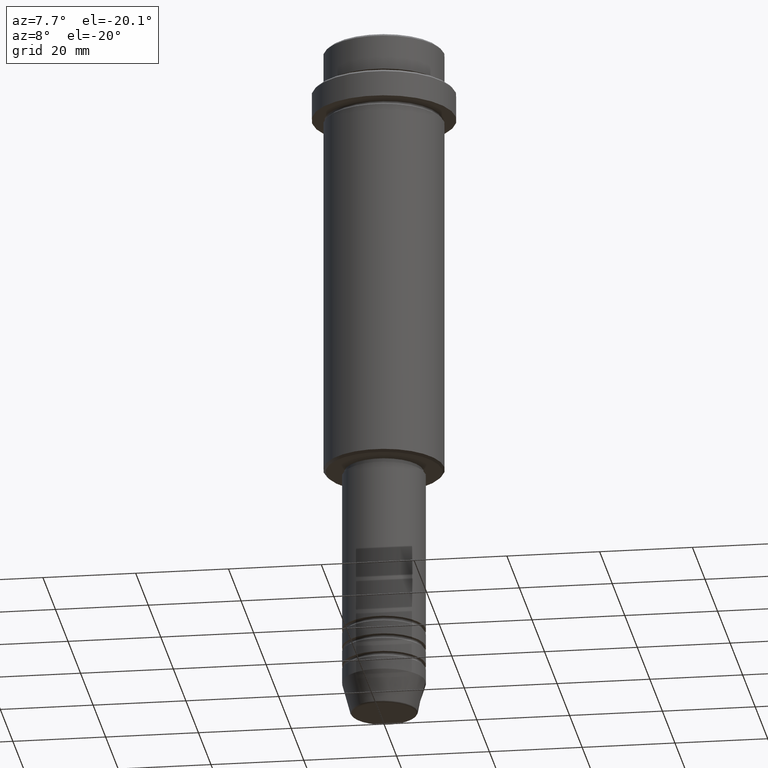
[diagram: clean part render]
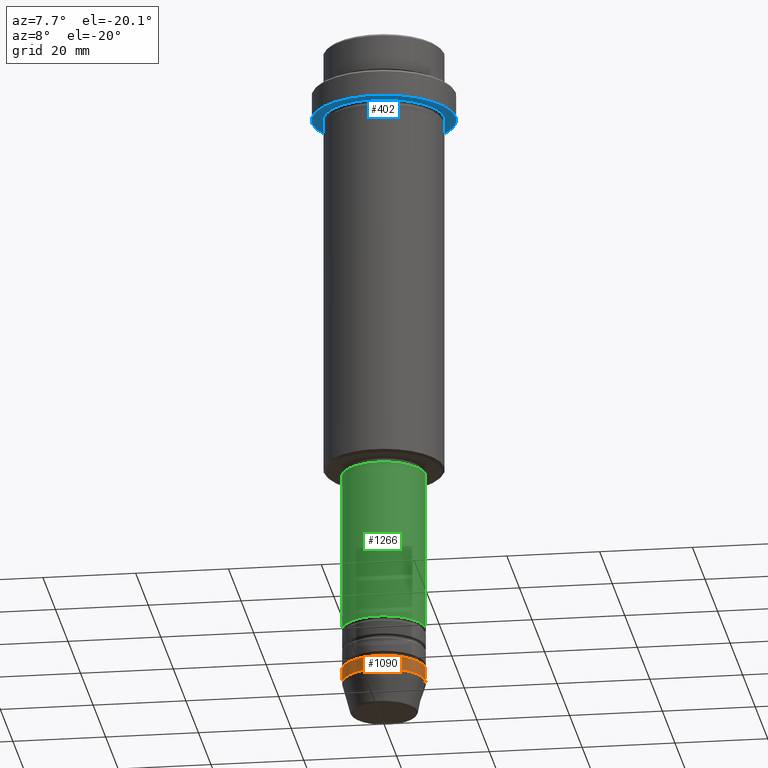
[diagram: same view with three faces highlighted in distinct colors, each labeled with its STEP entity id]
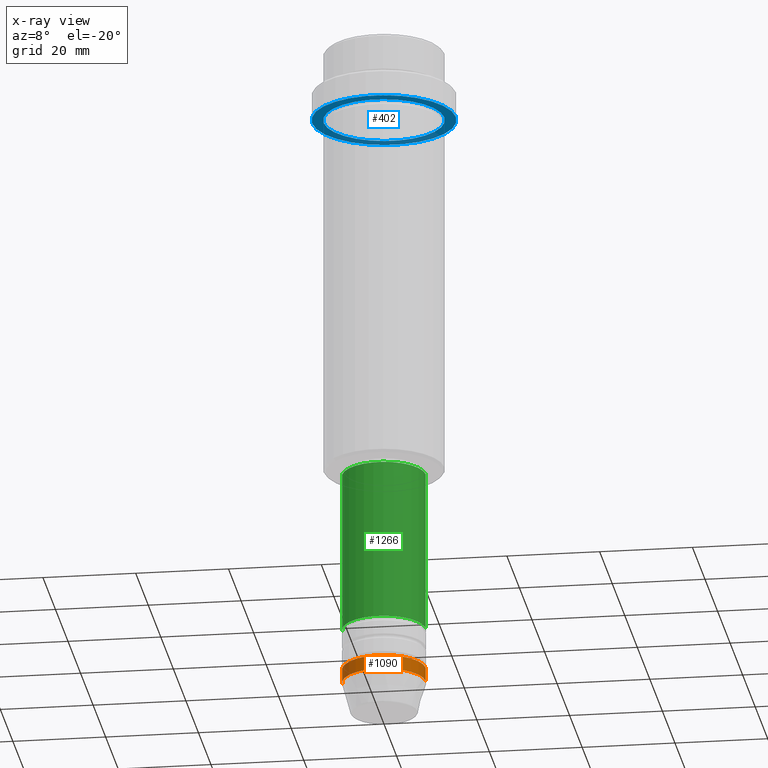
[diagram: x-ray of the same camera — body ghosted, the three highlighted faces saturated]
A machine part, auxiliary view with three faces highlighted in distinct colors.
The next image is the same camera in x-ray (body ghosted, the three faces saturated) — at least one of them is partly hidden behind the body in this view.
Their STEP definitions:

[orange] entity #1090 — the highlighted cylindrical surface (partial cylindrical patch) has radius 9 mm, axis along (-0, -0, 1).
#29 = ORIENTED_EDGE ( 'NONE', *, *, #1181, .T. ) ;
#86 = EDGE_CURVE ( 'NONE', #442, #1373, #738, .T. ) ;
#93 = CARTESIAN_POINT ( 'NONE',  ( 9.000000000000000000, 0.000000000000000000, -143.0000000000000000 ) ) ;
#106 = CARTESIAN_POINT ( 'NONE',  ( -9.000000000000000000, 1.102182119232617714E-15, -143.0000000000000000 ) ) ;
#250 = DIRECTION ( 'NONE',  ( -0.000000000000000000, -0.000000000000000000, 1.000000000000000000 ) ) ;
#273 = CARTESIAN_POINT ( 'NONE',  ( 0.000000000000000000, 0.000000000000000000, -139.9999999999999716 ) ) ;
#442 = VERTEX_POINT ( 'NONE', #106 ) ;
#459 = CARTESIAN_POINT ( 'NONE',  ( 9.000000000000000000, 0.000000000000000000, 0.000000000000000000 ) ) ;
#480 = DIRECTION ( 'NONE',  ( -0.000000000000000000, -0.000000000000000000, 1.000000000000000000 ) ) ;
#495 = EDGE_LOOP ( 'NONE', ( #765, #29, #663, #875 ) ) ;
#534 = AXIS2_PLACEMENT_3D ( 'NONE', #1129, #250, #677 ) ;
#600 = AXIS2_PLACEMENT_3D ( 'NONE', #1033, #605, #1045 ) ;
#605 = DIRECTION ( 'NONE',  ( -0.000000000000000000, -0.000000000000000000, 1.000000000000000000 ) ) ;
#649 = CARTESIAN_POINT ( 'NONE',  ( -9.000000000000000000, 1.102182119232617714E-15, -139.9999999999999716 ) ) ;
#663 = ORIENTED_EDGE ( 'NONE', *, *, #983, .T. ) ;
#677 = DIRECTION ( 'NONE',  ( 1.000000000000000000, 0.000000000000000000, 0.000000000000000000 ) ) ;
#705 = FACE_OUTER_BOUND ( 'NONE', #495, .T. ) ;
#738 = LINE ( 'NONE', #1078, #1081 ) ;
#739 = VECTOR ( 'NONE', #1326, 1000.000000000000000 ) ;
#756 = VERTEX_POINT ( 'NONE', #93 ) ;
#763 = AXIS2_PLACEMENT_3D ( 'NONE', #273, #480, #911 ) ;
#765 = ORIENTED_EDGE ( 'NONE', *, *, #86, .F. ) ;
#853 = CIRCLE ( 'NONE', #763, 9.000000000000000000 ) ;
#875 = ORIENTED_EDGE ( 'NONE', *, *, #1344, .F. ) ;
#880 = CARTESIAN_POINT ( 'NONE',  ( 9.000000000000000000, 0.000000000000000000, -139.9999999999999716 ) ) ;
#911 = DIRECTION ( 'NONE',  ( 1.000000000000000000, 0.000000000000000000, 0.000000000000000000 ) ) ;
#925 = CYLINDRICAL_SURFACE ( 'NONE', #600, 9.000000000000000000 ) ;
#966 = DIRECTION ( 'NONE',  ( -0.000000000000000000, -0.000000000000000000, 1.000000000000000000 ) ) ;
#983 = EDGE_CURVE ( 'NONE', #756, #1152, #1005, .T. ) ;
#1005 = LINE ( 'NONE', #459, #739 ) ;
#1033 = CARTESIAN_POINT ( 'NONE',  ( 0.000000000000000000, 0.000000000000000000, 0.000000000000000000 ) ) ;
#1045 = DIRECTION ( 'NONE',  ( 1.000000000000000000, 0.000000000000000000, 0.000000000000000000 ) ) ;
#1078 = CARTESIAN_POINT ( 'NONE',  ( -9.000000000000000000, 1.102182119232617714E-15, 0.000000000000000000 ) ) ;
#1081 = VECTOR ( 'NONE', #966, 1000.000000000000000 ) ;
#1090 = ADVANCED_FACE ( 'NONE', ( #705 ), #925, .T. ) ;
#1129 = CARTESIAN_POINT ( 'NONE',  ( 0.000000000000000000, 0.000000000000000000, -143.0000000000000000 ) ) ;
#1152 = VERTEX_POINT ( 'NONE', #880 ) ;
#1181 = EDGE_CURVE ( 'NONE', #442, #756, #1201, .T. ) ;
#1201 = CIRCLE ( 'NONE', #534, 9.000000000000000000 ) ;
#1326 = DIRECTION ( 'NONE',  ( -0.000000000000000000, -0.000000000000000000, 1.000000000000000000 ) ) ;
#1344 = EDGE_CURVE ( 'NONE', #1373, #1152, #853, .T. ) ;
#1373 = VERTEX_POINT ( 'NONE', #649 ) ;

[blue] entity #402 — the highlighted planar face has unit normal (0, 0, -1).
#17 = VERTEX_POINT ( 'NONE', #379 ) ;
#25 = DIRECTION ( 'NONE',  ( 1.000000000000000000, 0.000000000000000000, 0.000000000000000000 ) ) ;
#116 = CARTESIAN_POINT ( 'NONE',  ( 15.50000000000000000, 0.000000000000000000, -15.00000000000000000 ) ) ;
#140 = VERTEX_POINT ( 'NONE', #1295 ) ;
#186 = EDGE_LOOP ( 'NONE', ( #270, #869 ) ) ;
#192 = CARTESIAN_POINT ( 'NONE',  ( 0.000000000000000000, 0.000000000000000000, -15.00000000000000000 ) ) ;
#197 = CIRCLE ( 'NONE', #378, 12.99999999999999645 ) ;
#252 = CARTESIAN_POINT ( 'NONE',  ( 0.000000000000000000, 0.000000000000000000, -15.00000000000000000 ) ) ;
#268 = EDGE_CURVE ( 'NONE', #17, #727, #1305, .T. ) ;
#270 = ORIENTED_EDGE ( 'NONE', *, *, #941, .F. ) ;
#279 = VERTEX_POINT ( 'NONE', #1364 ) ;
#291 = DIRECTION ( 'NONE',  ( 0.000000000000000000, 0.000000000000000000, -1.000000000000000000 ) ) ;
#337 = ORIENTED_EDGE ( 'NONE', *, *, #1130, .T. ) ;
#338 = DIRECTION ( 'NONE',  ( 1.000000000000000000, 0.000000000000000000, 0.000000000000000000 ) ) ;
#375 = DIRECTION ( 'NONE',  ( -1.000000000000000000, 0.000000000000000000, 0.000000000000000000 ) ) ;
#378 = AXIS2_PLACEMENT_3D ( 'NONE', #810, #1355, #375 ) ;
#379 = CARTESIAN_POINT ( 'NONE',  ( -15.50000000000000000, 1.898202538678397557E-15, -15.00000000000000000 ) ) ;
#399 = CIRCLE ( 'NONE', #1358, 15.50000000000000000 ) ;
#402 = ADVANCED_FACE ( 'NONE', ( #1060, #827 ), #1267, .T. ) ;
#464 = ORIENTED_EDGE ( 'NONE', *, *, #1353, .T. ) ;
#681 = EDGE_LOOP ( 'NONE', ( #337, #464 ) ) ;
#686 = AXIS2_PLACEMENT_3D ( 'NONE', #1205, #700, #338 ) ;
#700 = DIRECTION ( 'NONE',  ( -0.000000000000000000, -0.000000000000000000, 1.000000000000000000 ) ) ;
#715 = AXIS2_PLACEMENT_3D ( 'NONE', #842, #291, #724 ) ;
#724 = DIRECTION ( 'NONE',  ( -1.000000000000000000, 0.000000000000000000, -0.000000000000000000 ) ) ;
#727 = VERTEX_POINT ( 'NONE', #116 ) ;
#810 = CARTESIAN_POINT ( 'NONE',  ( 0.000000000000000000, 0.000000000000000000, -15.00000000000000000 ) ) ;
#827 = FACE_OUTER_BOUND ( 'NONE', #186, .T. ) ;
#842 = CARTESIAN_POINT ( 'NONE',  ( 0.000000000000000000, 15.50000000000000000, -15.00000000000000000 ) ) ;
#869 = ORIENTED_EDGE ( 'NONE', *, *, #268, .F. ) ;
#941 = EDGE_CURVE ( 'NONE', #727, #17, #399, .T. ) ;
#993 = CIRCLE ( 'NONE', #1064, 12.99999999999999645 ) ;
#1060 = FACE_BOUND ( 'NONE', #681, .T. ) ;
#1064 = AXIS2_PLACEMENT_3D ( 'NONE', #192, #1402, #1296 ) ;
#1111 = DIRECTION ( 'NONE',  ( -0.000000000000000000, -0.000000000000000000, 1.000000000000000000 ) ) ;
#1130 = EDGE_CURVE ( 'NONE', #140, #279, #993, .T. ) ;
#1205 = CARTESIAN_POINT ( 'NONE',  ( 0.000000000000000000, 0.000000000000000000, -15.00000000000000000 ) ) ;
#1267 = PLANE ( 'NONE',  #715 ) ;
#1295 = CARTESIAN_POINT ( 'NONE',  ( -12.99999999999999645, 0.000000000000000000, -15.00000000000000000 ) ) ;
#1296 = DIRECTION ( 'NONE',  ( -1.000000000000000000, 0.000000000000000000, 0.000000000000000000 ) ) ;
#1305 = CIRCLE ( 'NONE', #686, 15.50000000000000000 ) ;
#1353 = EDGE_CURVE ( 'NONE', #279, #140, #197, .T. ) ;
#1355 = DIRECTION ( 'NONE',  ( -0.000000000000000000, -0.000000000000000000, 1.000000000000000000 ) ) ;
#1358 = AXIS2_PLACEMENT_3D ( 'NONE', #252, #1111, #25 ) ;
#1364 = CARTESIAN_POINT ( 'NONE',  ( 12.99999999999999645, 1.592040838891558701E-15, -15.00000000000000000 ) ) ;
#1402 = DIRECTION ( 'NONE',  ( -0.000000000000000000, -0.000000000000000000, 1.000000000000000000 ) ) ;

[green] entity #1266 — the highlighted cylindrical surface (partial cylindrical patch) has radius 9 mm, axis along (-0, -0, 1).
#8 = DIRECTION ( 'NONE',  ( 1.000000000000000000, 0.000000000000000000, 0.000000000000000000 ) ) ;
#49 = ORIENTED_EDGE ( 'NONE', *, *, #725, .T. ) ;
#70 = DIRECTION ( 'NONE',  ( -0.000000000000000000, -0.000000000000000000, 1.000000000000000000 ) ) ;
#78 = VERTEX_POINT ( 'NONE', #1301 ) ;
#157 = FACE_OUTER_BOUND ( 'NONE', #1350, .T. ) ;
#204 = LINE ( 'NONE', #866, #1356 ) ;
#213 = CARTESIAN_POINT ( 'NONE',  ( 0.000000000000000000, 0.000000000000000000, -130.9999999999998863 ) ) ;
#228 = VERTEX_POINT ( 'NONE', #271 ) ;
#271 = CARTESIAN_POINT ( 'NONE',  ( 9.000000000000000000, 0.000000000000000000, -130.9999999999998863 ) ) ;
#294 = VERTEX_POINT ( 'NONE', #1309 ) ;
#313 = ORIENTED_EDGE ( 'NONE', *, *, #502, .F. ) ;
#325 = DIRECTION ( 'NONE',  ( 1.000000000000000000, 0.000000000000000000, 0.000000000000000000 ) ) ;
#377 = EDGE_CURVE ( 'NONE', #1278, #78, #607, .T. ) ;
#407 = CARTESIAN_POINT ( 'NONE',  ( -9.000000000000001776, 1.102182119232617911E-15, 0.000000000000000000 ) ) ;
#458 = ORIENTED_EDGE ( 'NONE', *, *, #1375, .T. ) ;
#499 = DIRECTION ( 'NONE',  ( -0.000000000000000000, -0.000000000000000000, 1.000000000000000000 ) ) ;
#502 = EDGE_CURVE ( 'NONE', #78, #294, #688, .T. ) ;
#543 = DIRECTION ( 'NONE',  ( -0.000000000000000000, -0.000000000000000000, 1.000000000000000000 ) ) ;
#592 = DIRECTION ( 'NONE',  ( 1.000000000000000000, 0.000000000000000000, 0.000000000000000000 ) ) ;
#607 = LINE ( 'NONE', #407, #1155 ) ;
#625 = AXIS2_PLACEMENT_3D ( 'NONE', #1024, #499, #592 ) ;
#688 = CIRCLE ( 'NONE', #1331, 9.000000000000001776 ) ;
#720 = CARTESIAN_POINT ( 'NONE',  ( -9.000000000000000000, 1.102182119232617714E-15, -130.9999999999998863 ) ) ;
#725 = EDGE_CURVE ( 'NONE', #228, #294, #204, .T. ) ;
#741 = CIRCLE ( 'NONE', #1039, 9.000000000000000000 ) ;
#866 = CARTESIAN_POINT ( 'NONE',  ( 9.000000000000001776, 0.000000000000000000, 0.000000000000000000 ) ) ;
#961 = DIRECTION ( 'NONE',  ( -0.000000000000000000, -0.000000000000000000, 1.000000000000000000 ) ) ;
#971 = CARTESIAN_POINT ( 'NONE',  ( 0.000000000000000000, 0.000000000000000000, -96.00000000000000000 ) ) ;
#1024 = CARTESIAN_POINT ( 'NONE',  ( 0.000000000000000000, 0.000000000000000000, 0.000000000000000000 ) ) ;
#1039 = AXIS2_PLACEMENT_3D ( 'NONE', #213, #1294, #325 ) ;
#1155 = VECTOR ( 'NONE', #70, 1000.000000000000000 ) ;
#1162 = CYLINDRICAL_SURFACE ( 'NONE', #625, 9.000000000000001776 ) ;
#1211 = ORIENTED_EDGE ( 'NONE', *, *, #377, .F. ) ;
#1266 = ADVANCED_FACE ( 'NONE', ( #157 ), #1162, .T. ) ;
#1278 = VERTEX_POINT ( 'NONE', #720 ) ;
#1294 = DIRECTION ( 'NONE',  ( -0.000000000000000000, -0.000000000000000000, 1.000000000000000000 ) ) ;
#1301 = CARTESIAN_POINT ( 'NONE',  ( -9.000000000000001776, 1.102182119232617911E-15, -96.00000000000000000 ) ) ;
#1309 = CARTESIAN_POINT ( 'NONE',  ( 9.000000000000001776, 0.000000000000000000, -96.00000000000000000 ) ) ;
#1331 = AXIS2_PLACEMENT_3D ( 'NONE', #971, #961, #8 ) ;
#1350 = EDGE_LOOP ( 'NONE', ( #1211, #458, #49, #313 ) ) ;
#1356 = VECTOR ( 'NONE', #543, 1000.000000000000000 ) ;
#1375 = EDGE_CURVE ( 'NONE', #1278, #228, #741, .T. ) ;